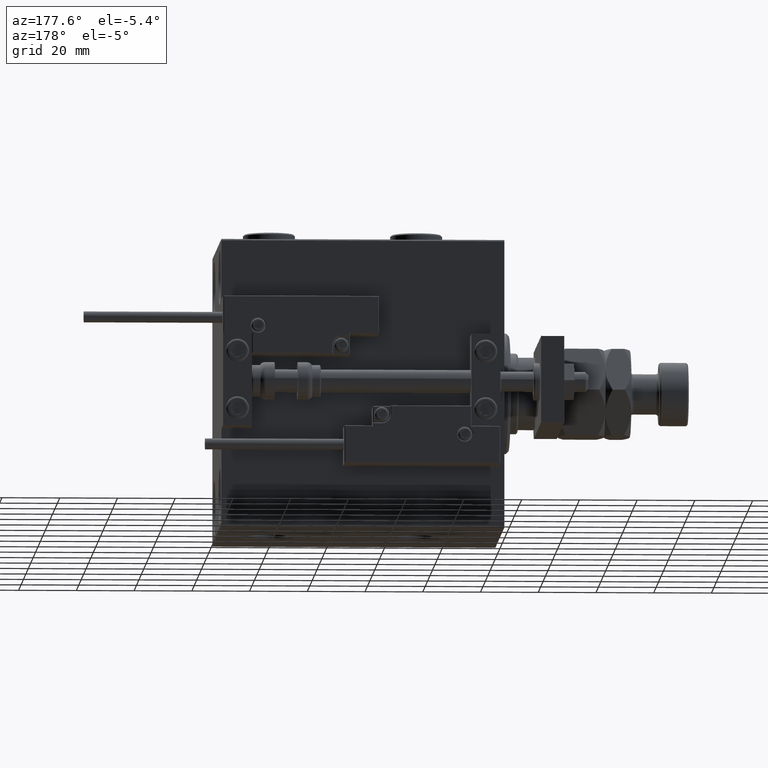
[diagram: clean part render]
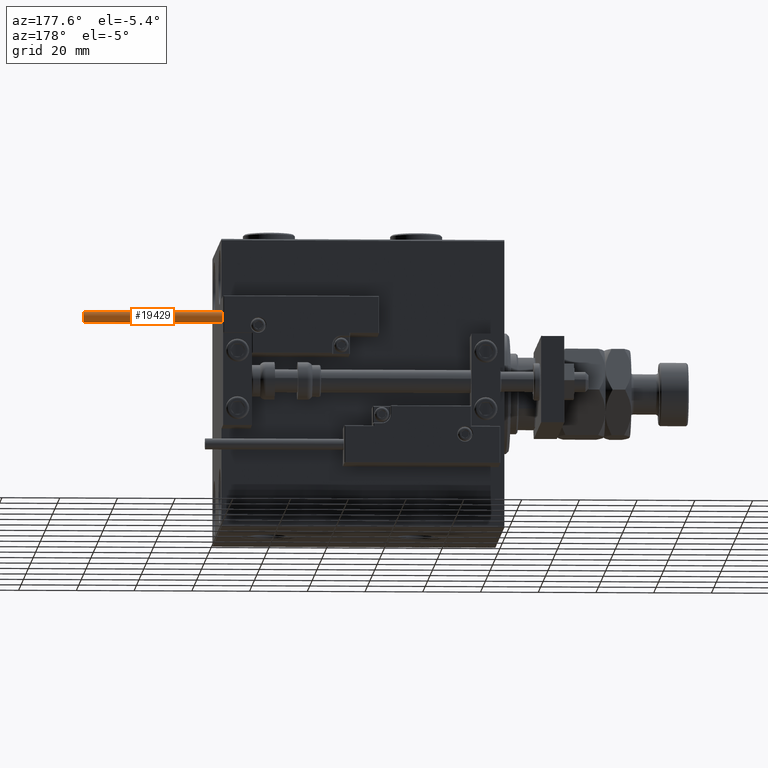
[diagram: same view with one face highlighted and labeled with its STEP entity id]
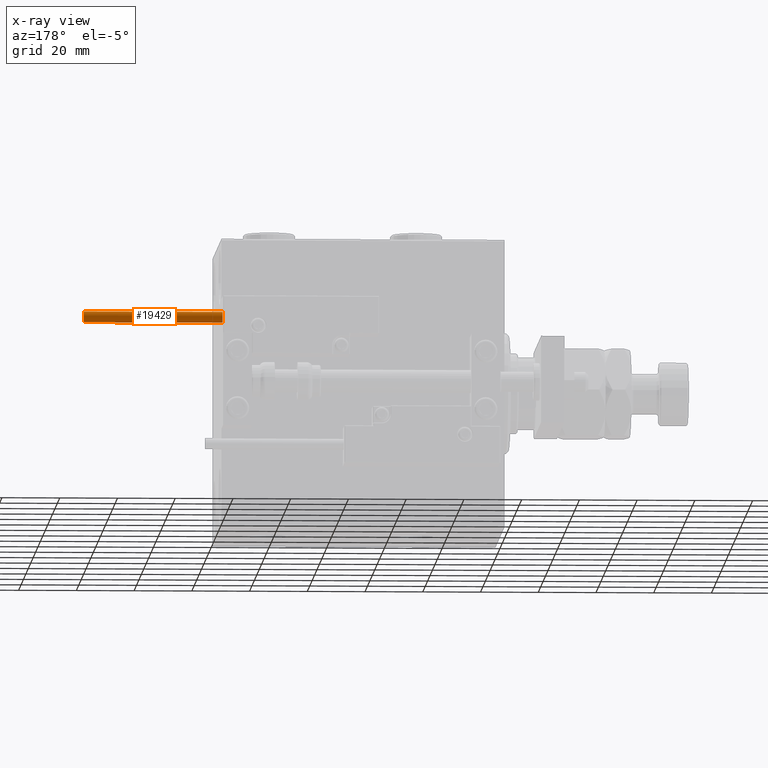
[diagram: x-ray of the same camera — body ghosted, the highlighted face saturated]
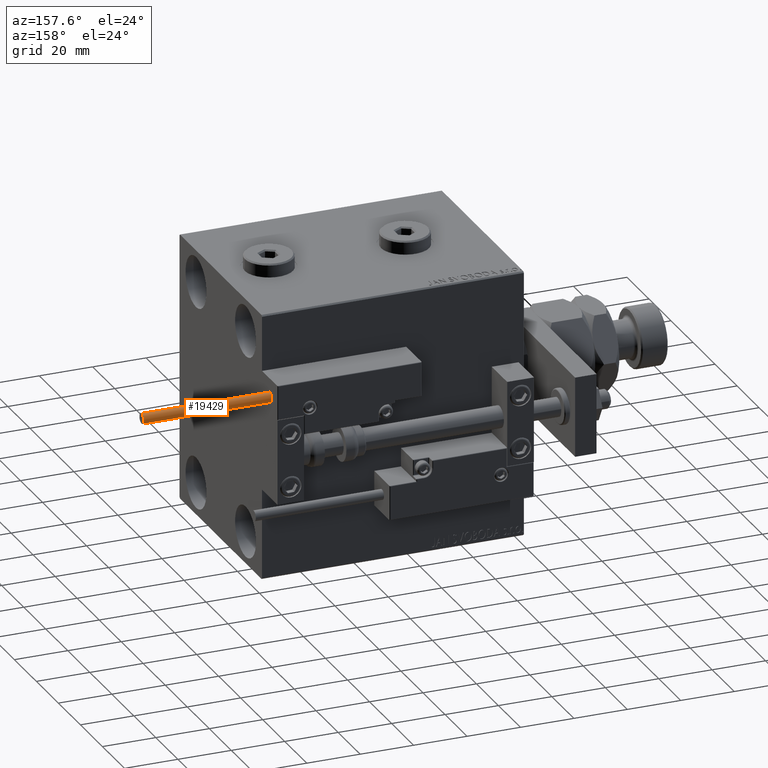
[diagram: same view with one face highlighted and labeled with its STEP entity id]
A machine part, auxiliary view. The second image highlights one B-rep face of the part: STEP entity #19429.
The next image is the same camera in x-ray: the body ghosted, the highlighted face saturated — about 0% of this face is hidden behind the body in this view.
A second angle (auxiliary view) of the same face is appended — the face is thin or edge-on in the first view.
In plain terms, the highlighted cylindrical surface (edge-blend (fillet) strip) has radius 1.9 mm, axis along (-1, -0, 0).
Its self-contained STEP definition (entity closure, byte-faithful):
#1285 = DIRECTION ( 'NONE',  ( 1.000000000000000000, 0.000000000000000000, 0.000000000000000000 ) ) ;
#3159 = DIRECTION ( 'NONE',  ( 0.000000000000000000, 0.000000000000000000, 1.000000000000000000 ) ) ;
#3229 = LINE ( 'NONE', #11040, #8350 ) ;
#4197 = VECTOR ( 'NONE', #44861, 1000.000000000000000 ) ;
#6618 = CARTESIAN_POINT ( 'NONE',  ( 1.899999999999999467, 2.326828918379970872E-16, 48.00000000000000000 ) ) ;
#6687 = ORIENTED_EDGE ( 'NONE', *, *, #53086, .T. ) ;
#7356 = AXIS2_PLACEMENT_3D ( 'NONE', #36067, #3159, #48737 ) ;
#8350 = VECTOR ( 'NONE', #27519, 1000.000000000000000 ) ;
#8968 = ORIENTED_EDGE ( 'NONE', *, *, #23481, .T. ) ;
#9385 = DIRECTION ( 'NONE',  ( 0.000000000000000000, 0.000000000000000000, 1.000000000000000000 ) ) ;
#10863 = ORIENTED_EDGE ( 'NONE', *, *, #17108, .F. ) ;
#11040 = CARTESIAN_POINT ( 'NONE',  ( -1.899999999999999467, 0.000000000000000000, 48.00000000000000000 ) ) ;
#14977 = CIRCLE ( 'NONE', #28786, 1.899999999999999467 ) ;
#15649 = DIRECTION ( 'NONE',  ( -1.000000000000000000, 0.000000000000000000, 0.000000000000000000 ) ) ;
#15923 = CYLINDRICAL_SURFACE ( 'NONE', #34893, 1.899999999999999467 ) ;
#17108 = EDGE_CURVE ( 'NONE', #24618, #22748, #14977, .T. ) ;
#18525 = CARTESIAN_POINT ( 'NONE',  ( 0.000000000000000000, 0.000000000000000000, 48.00000000000000000 ) ) ;
#19429 = ADVANCED_FACE ( 'NONE', ( #41001 ), #15923, .T. ) ;
#20699 = CARTESIAN_POINT ( 'NONE',  ( 1.899999999999999467, 2.326828918379970872E-16, 0.000000000000000000 ) ) ;
#22748 = VERTEX_POINT ( 'NONE', #48857 ) ;
#23481 = EDGE_CURVE ( 'NONE', #25357, #41681, #31498, .T. ) ;
#24117 = LINE ( 'NONE', #48651, #4197 ) ;
#24618 = VERTEX_POINT ( 'NONE', #6618 ) ;
#25357 = VERTEX_POINT ( 'NONE', #20699 ) ;
#26968 = EDGE_CURVE ( 'NONE', #22748, #41681, #3229, .T. ) ;
#27519 = DIRECTION ( 'NONE',  ( -0.000000000000000000, -0.000000000000000000, -1.000000000000000000 ) ) ;
#28786 = AXIS2_PLACEMENT_3D ( 'NONE', #18525, #9385, #1285 ) ;
#29097 = ORIENTED_EDGE ( 'NONE', *, *, #26968, .F. ) ;
#31498 = CIRCLE ( 'NONE', #7356, 1.899999999999999467 ) ;
#34323 = EDGE_LOOP ( 'NONE', ( #10863, #6687, #8968, #29097 ) ) ;
#34893 = AXIS2_PLACEMENT_3D ( 'NONE', #37219, #48818, #15649 ) ;
#36067 = CARTESIAN_POINT ( 'NONE',  ( 0.000000000000000000, 0.000000000000000000, 0.000000000000000000 ) ) ;
#37219 = CARTESIAN_POINT ( 'NONE',  ( 0.000000000000000000, 0.000000000000000000, 48.00000000000000000 ) ) ;
#39603 = CARTESIAN_POINT ( 'NONE',  ( -1.899999999999999467, 0.000000000000000000, 0.000000000000000000 ) ) ;
#41001 = FACE_OUTER_BOUND ( 'NONE', #34323, .T. ) ;
#41681 = VERTEX_POINT ( 'NONE', #39603 ) ;
#44861 = DIRECTION ( 'NONE',  ( -0.000000000000000000, -0.000000000000000000, -1.000000000000000000 ) ) ;
#48651 = CARTESIAN_POINT ( 'NONE',  ( 1.899999999999999467, 2.326828918379970872E-16, 48.00000000000000000 ) ) ;
#48737 = DIRECTION ( 'NONE',  ( 1.000000000000000000, 0.000000000000000000, 0.000000000000000000 ) ) ;
#48818 = DIRECTION ( 'NONE',  ( -0.000000000000000000, -0.000000000000000000, -1.000000000000000000 ) ) ;
#48857 = CARTESIAN_POINT ( 'NONE',  ( -1.899999999999999467, 0.000000000000000000, 48.00000000000000000 ) ) ;
#53086 = EDGE_CURVE ( 'NONE', #24618, #25357, #24117, .T. ) ;